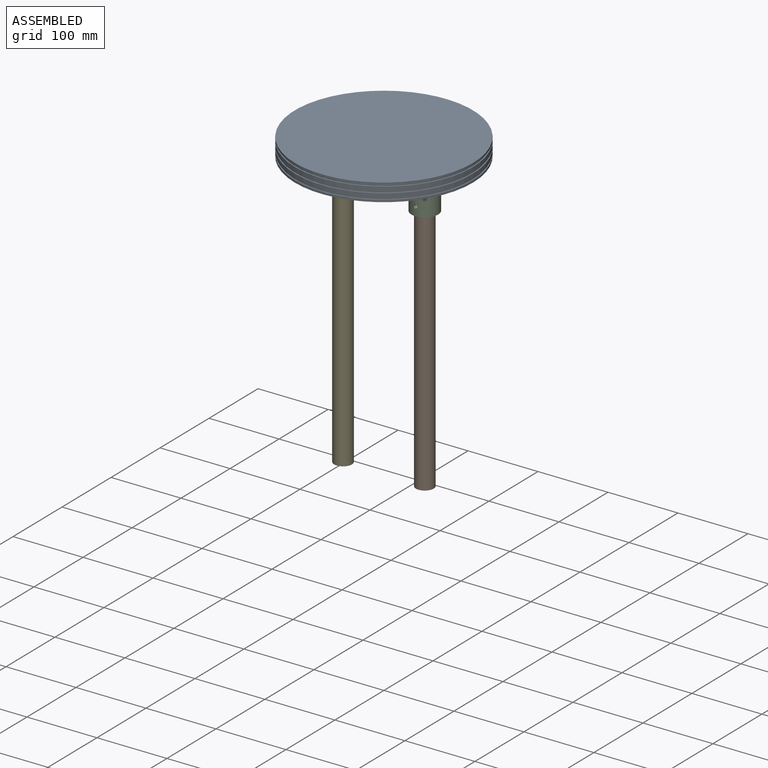
[diagram: assembled view]
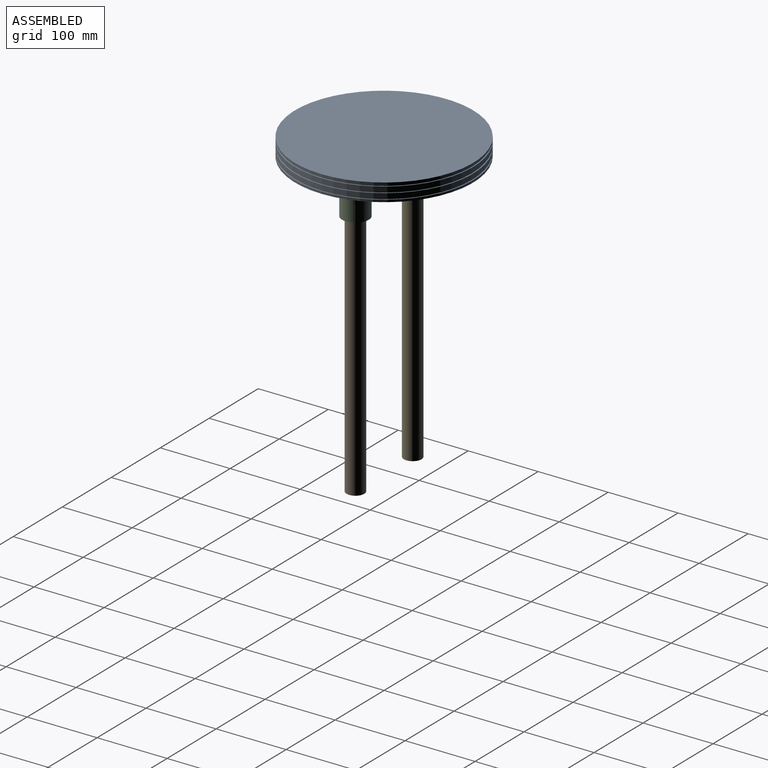
[diagram: assembled view, second angle]
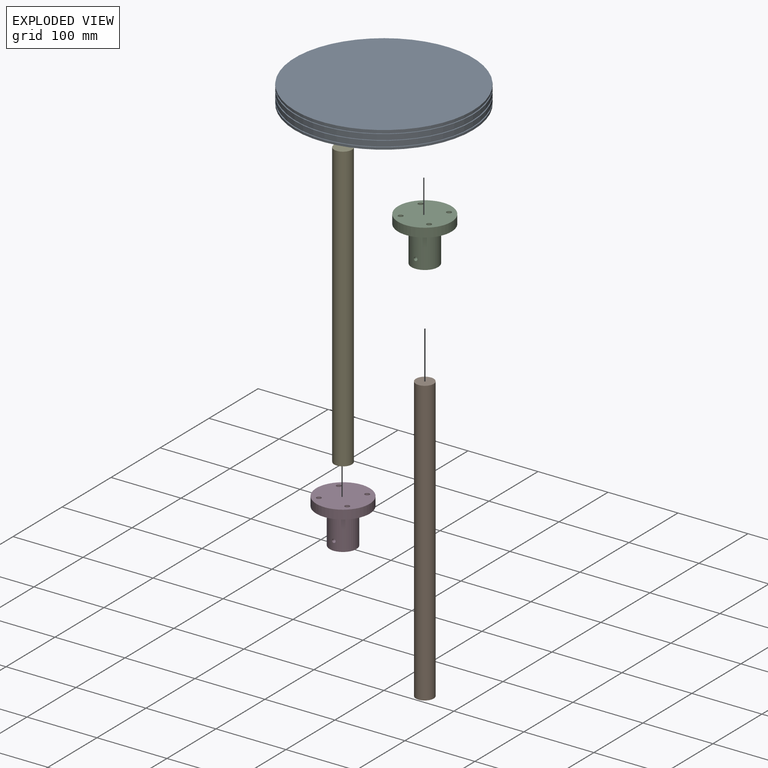
[diagram: exploded view]
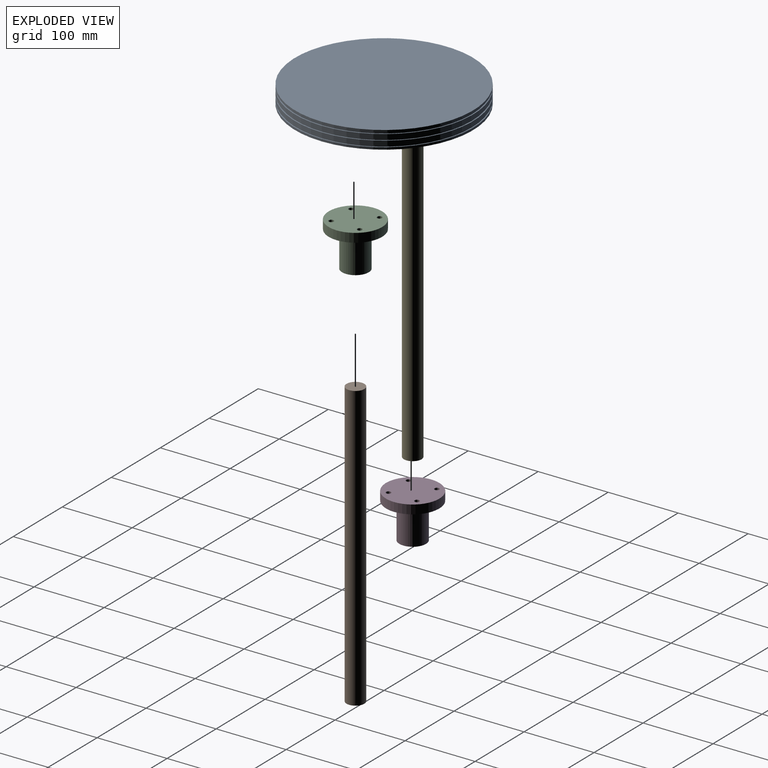
[diagram: exploded view, second angle]
ASSEMBLY  parts=5 mates=10
PART A: 33 faces, bbox 254.5x254.5x25.4 mm
  f0: plane 254.51x254.51mm, normal (0,0,-1), area 14091.5mm2, adj f1,f16
  f1: cylinder r=108.2mm len=216.41mm, axis (0,0,1), area 6044mm2, adj f0,f2
  f2: plane 216.41x216.41mm, normal (0,0,-1), area 36618.3mm2, adj f1,f18,f20,f22,f24,f26,f28,f30
  f3: plane 254.51x254.51mm, normal (0,0,1), area 50873.6mm2, adj f4
  f4: cylinder r=127.25mm len=254.51mm, axis (0,0,1), area 2538.6mm2, adj f3,f5
  f5: plane 254.51x254.51mm, normal (0,0,-1), area 1211.2mm2, adj f4,f6
  f6: cylinder r=125.73mm len=251.46mm, axis (0,0,1), area 1605.2mm2, adj f5,f7
  f7: plane 254.51x254.51mm, normal (0,0,1), area 1211.2mm2, adj f6,f8
  f8: cylinder r=127.25mm len=254.51mm, axis (0,0,1), area 5178.8mm2, adj f7,f9
  f9: plane 254.51x254.51mm, normal (0,0,-1), area 1211.2mm2, adj f8,f10
  f10: cylinder r=125.73mm len=251.46mm, axis (0,0,1), area 1605.2mm2, adj f9,f11
  f11: plane 254.51x254.51mm, normal (0,0,1), area 1211.2mm2, adj f10,f12
  f12: cylinder r=127.25mm len=254.51mm, axis (0,0,1), area 5178.8mm2, adj f11,f13
  f13: plane 254.51x254.51mm, normal (0,0,-1), area 1211.2mm2, adj f12,f14
  f14: cylinder r=125.73mm len=251.46mm, axis (0,0,1), area 1605.2mm2, adj f13,f15
  f15: plane 254.51x254.51mm, normal (0,0,1), area 1211.2mm2, adj f14,f16
  f16: cylinder r=127.25mm len=254.51mm, axis (0,0,1), area 2538.6mm2, adj f0,f15
  f17: cone r=0mm half-angle=59deg, axis (0,0,-1), area 23.9mm2, adj f18
  f18: cylinder r=2.55mm len=14.61mm, axis (0,0,-1), area 234.3mm2, adj f2,f17
  f19: cone r=0mm half-angle=59deg, axis (0,0,-1), area 23.9mm2, adj f20
  f20: cylinder r=2.55mm len=14.61mm, axis (0,0,-1), area 234.3mm2, adj f2,f19
  f21: cone r=0mm half-angle=59deg, axis (0,0,-1), area 23.9mm2, adj f22
  f22: cylinder r=2.55mm len=14.61mm, axis (0,0,-1), area 234.3mm2, adj f2,f21
  f23: cone r=0mm half-angle=59deg, axis (0,0,-1), area 23.9mm2, adj f24
  f24: cylinder r=2.55mm len=14.61mm, axis (0,0,-1), area 234.3mm2, adj f2,f23
  f25: cone r=0mm half-angle=59deg, axis (0,0,-1), area 23.9mm2, adj f26
  f26: cylinder r=2.55mm len=14.61mm, axis (0,0,-1), area 234.3mm2, adj f2,f25
  f27: cone r=0mm half-angle=59deg, axis (0,0,-1), area 23.9mm2, adj f28
  f28: cylinder r=2.55mm len=14.61mm, axis (0,0,-1), area 234.3mm2, adj f2,f27
  f29: cone r=0mm half-angle=59deg, axis (0,0,-1), area 23.9mm2, adj f30
  f30: cylinder r=2.55mm len=14.61mm, axis (0,0,-1), area 234.3mm2, adj f2,f29
  f31: cone r=0mm half-angle=59deg, axis (0,0,-1), area 23.9mm2, adj f32
  f32: cylinder r=2.55mm len=14.61mm, axis (0,0,-1), area 234.3mm2, adj f2,f31
PART B: 3 faces, bbox 25.4x25.4x406.4 mm
  f0: cylinder r=12.7mm len=406.4mm, axis (0,0,-1), area 32429.3mm2, adj f1,f2
  f1: plane 25.4x25.4mm, normal (0,0,1), area 506.7mm2, adj f0
  f2: plane 25.4x25.4mm, normal (0,0,-1), area 506.7mm2, adj f0
PART C: 12 faces, bbox 76.2x76.2x63.5 mm
  f0: cylinder r=12.7mm len=50.8mm, axis (0,0,-1), area 4033.2mm2, adj f5,f6,f11
  f1: cylinder r=19.05mm len=50.8mm, axis (0,0,-1), area 6060.1mm2, adj f3,f5,f11
  f2: cylinder r=38.1mm len=76.2mm, axis (0,0,-1), area 3040.2mm2, adj f3,f4
  f3: plane 76.2x76.2mm, normal (0,0,1), area 3276.9mm2, adj f1,f2,f7,f8,f9,f10
  f4: plane 76.2x76.2mm, normal (0,0,-1), area 4417mm2, adj f2,f7,f8,f9,f10
  f5: plane 38.1x38.1mm, normal (0,0,1), area 633.4mm2, adj f0,f1
  f6: plane 25.4x25.4mm, normal (0,0,1), area 506.7mm2, adj f0
  f7: cylinder r=3.38mm len=12.7mm, axis (0,0,1), area 269.6mm2, adj f3,f4
  f8: cylinder r=3.38mm len=12.7mm, axis (0,0,1), area 269.6mm2, adj f3,f4
  f9: cylinder r=3.38mm len=12.7mm, axis (0,0,1), area 269.6mm2, adj f3,f4
  f10: cylinder r=3.38mm len=12.7mm, axis (0,0,1), area 269.6mm2, adj f3,f4
  f11: cylinder r=2.55mm len=6.61mm, axis (0,-1,0), area 102.5mm2, adj f0,f1
PART D: same geometry as C
PART E: same geometry as B
PLACE A t=(0,0,-1.79)mm
PLACE B t=(58.42,0,-437.4)mm
PLACE C rot(axis=(1,0,0),180deg) t=(58.42,0,-18.3)mm
PLACE D rot(axis=(1,0,0),180deg) t=(-58.42,0,-18.3)mm
PLACE E t=(-58.42,0,-437.4)mm
MATE cylindrical C.f10 <-> A.f21  axis (0,0,-1) through (78.74,-20.32,-31)mm
MATE cylindrical B.f0 <-> C.f0  axis (0,0,-1) through (58.42,0,-234.2)mm
MATE cylindrical C.f8 <-> A.f19  axis (0,0,-1) through (38.1,20.32,-24.65)mm
MATE cylindrical E.f0 <-> D.f0  axis (0,0,-1) through (-58.42,0,-31)mm
MATE planar E.f0 <-> D.f0  axis (0,0,1) through (-58.42,0,-31)mm
MATE planar B.f0 <-> C.f0  axis (0,0,1) through (58.42,0,-31)mm
MATE planar C.f2 <-> A.f1  axis (0,0,1) through (58.42,0,-18.3)mm
MATE cylindrical D.f7 <-> A.f25  axis (0,0,-1) through (-38.1,20.32,-24.65)mm
MATE planar D.f2 <-> A.f1  axis (0,0,1) through (-58.42,0,-18.3)mm
MATE cylindrical D.f9 <-> A.f27  axis (0,0,-1) through (-78.74,-20.32,-31)mm
